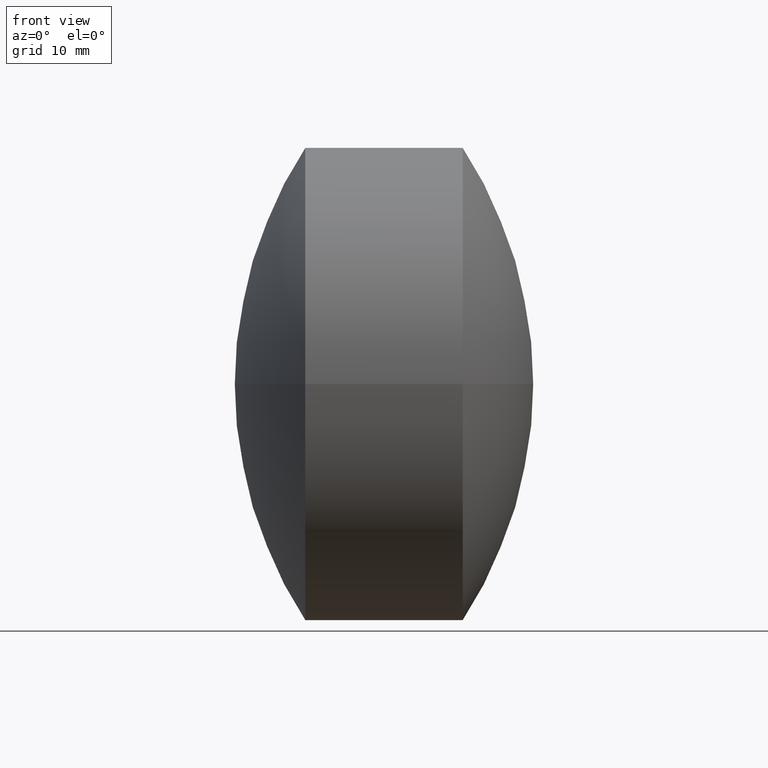
[diagram: clean part render]
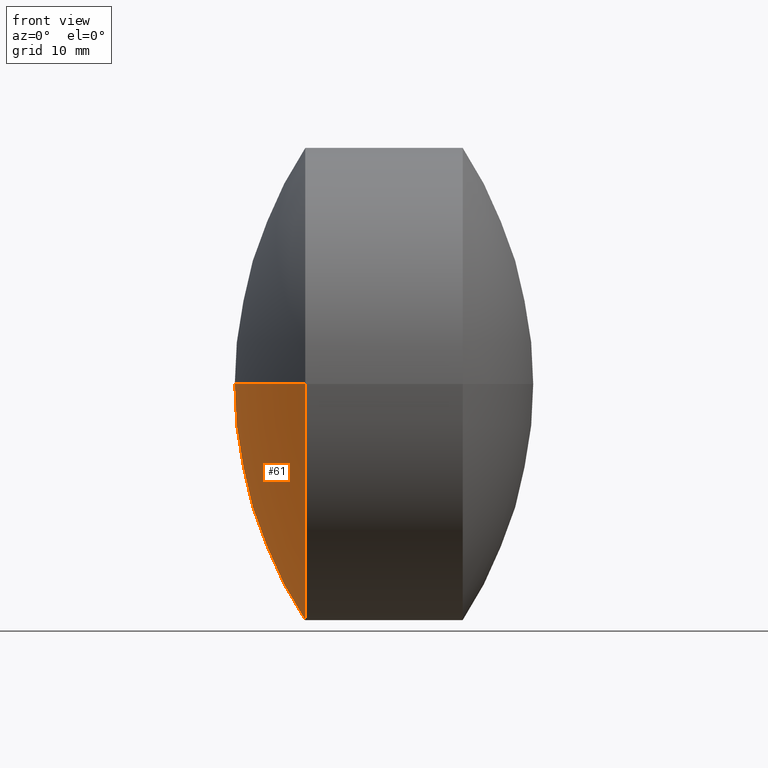
[diagram: same view with one face highlighted and labeled with its STEP entity id]
A machine part, front view. The second image highlights one B-rep face of the part: STEP entity #61.
In plain terms, the highlighted spherical surface has radius 63.8213 mm.
Its self-contained STEP definition (entity closure, byte-faithful):
#10 = DIRECTION ( 'NONE',  ( 1.000000000000000000, 0.0000000000000000000, 0.0000000000000000000 ) ) ;
#12 = ORIENTED_EDGE ( 'NONE', *, *, #199, .F. ) ;
#17 = EDGE_LOOP ( 'NONE', ( #267, #28, #12 ) ) ;
#21 = VERTEX_POINT ( 'NONE', #152 ) ;
#28 = ORIENTED_EDGE ( 'NONE', *, *, #180, .T. ) ;
#36 = CARTESIAN_POINT ( 'NONE',  ( 279.9721024927130800, 133.9814138434225000, 0.0000000000000000000 ) ) ;
#46 = AXIS2_PLACEMENT_3D ( 'NONE', #171, #150, #290 ) ;
#50 = CARTESIAN_POINT ( 'NONE',  ( 226.6040127648179500, 133.9814138434225900, 0.0000000000000000000 ) ) ;
#61 = ADVANCED_FACE ( 'NONE', ( #257 ), #237, .T. ) ;
#69 = AXIS2_PLACEMENT_3D ( 'NONE', #275, #296, #297 ) ;
#84 = AXIS2_PLACEMENT_3D ( 'NONE', #50, #251, #271 ) ;
#96 = AXIS2_PLACEMENT_3D ( 'NONE', #36, #202, #10 ) ;
#101 = CIRCLE ( 'NONE', #96, 63.82125822329626200 ) ;
#120 = CIRCLE ( 'NONE', #84, 35.00000000000002800 ) ;
#124 = CIRCLE ( 'NONE', #69, 63.82125822329626200 ) ;
#125 = CARTESIAN_POINT ( 'NONE',  ( 216.1508442694168400, 133.9814138434226200, 0.0000000000000000000 ) ) ;
#145 = VERTEX_POINT ( 'NONE', #125 ) ;
#150 = DIRECTION ( 'NONE',  ( 0.0000000000000000000, 0.0000000000000000000, -1.000000000000000000 ) ) ;
#152 = CARTESIAN_POINT ( 'NONE',  ( 226.6040127648180100, 168.9814138434225300, 0.0000000000000000000 ) ) ;
#171 = CARTESIAN_POINT ( 'NONE',  ( 279.9721024927130800, 133.9814138434225000, 0.0000000000000000000 ) ) ;
#178 = CARTESIAN_POINT ( 'NONE',  ( 226.6040127648179000, 98.98141384342262900, -4.286263797015731000E-015 ) ) ;
#180 = EDGE_CURVE ( 'NONE', #217, #145, #124, .T. ) ;
#185 = EDGE_CURVE ( 'NONE', #21, #217, #120, .T. ) ;
#199 = EDGE_CURVE ( 'NONE', #21, #145, #101, .T. ) ;
#202 = DIRECTION ( 'NONE',  ( 0.0000000000000000000, 0.0000000000000000000, 1.000000000000000000 ) ) ;
#217 = VERTEX_POINT ( 'NONE', #178 ) ;
#237 = SPHERICAL_SURFACE ( 'NONE', #46, 63.82125822329626200 ) ;
#251 = DIRECTION ( 'NONE',  ( -1.000000000000000000, 1.772925823926328100E-015, -0.0000000000000000000 ) ) ;
#257 = FACE_OUTER_BOUND ( 'NONE', #17, .T. ) ;
#267 = ORIENTED_EDGE ( 'NONE', *, *, #185, .T. ) ;
#271 = DIRECTION ( 'NONE',  ( -1.586032892321650900E-015, -1.000000000000000000, 0.0000000000000000000 ) ) ;
#275 = CARTESIAN_POINT ( 'NONE',  ( 279.9721024927130800, 133.9814138434225000, 0.0000000000000000000 ) ) ;
#290 = DIRECTION ( 'NONE',  ( 1.739581850205358500E-015, 1.000000000000000000, 0.0000000000000000000 ) ) ;
#296 = DIRECTION ( 'NONE',  ( 2.171207935397061500E-031, 1.224646799147353200E-016, -1.000000000000000000 ) ) ;
#297 = DIRECTION ( 'NONE',  ( 0.0000000000000000000, 1.000000000000000000, 1.224646799147353200E-016 ) ) ;